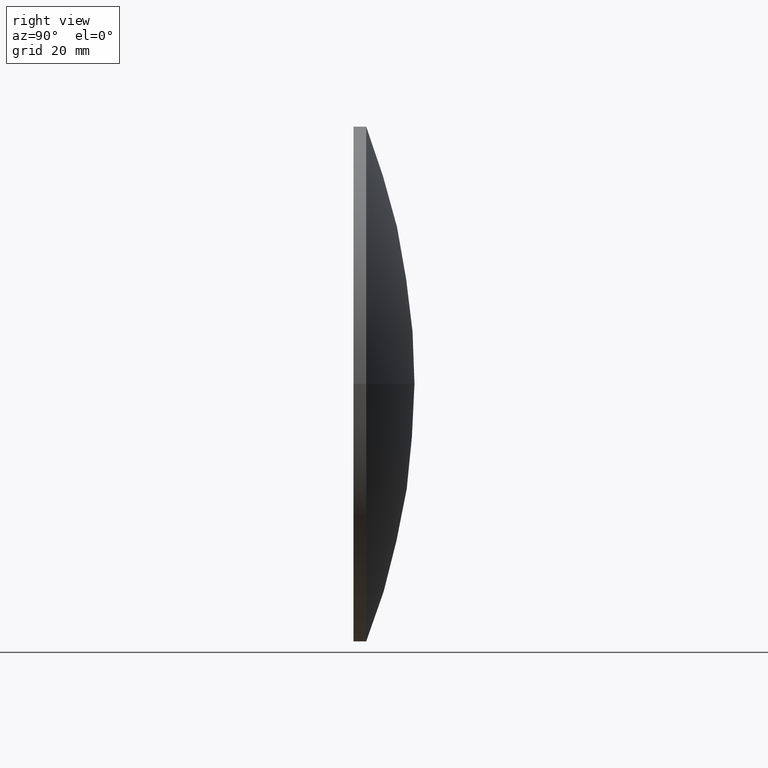
[diagram: clean part render]
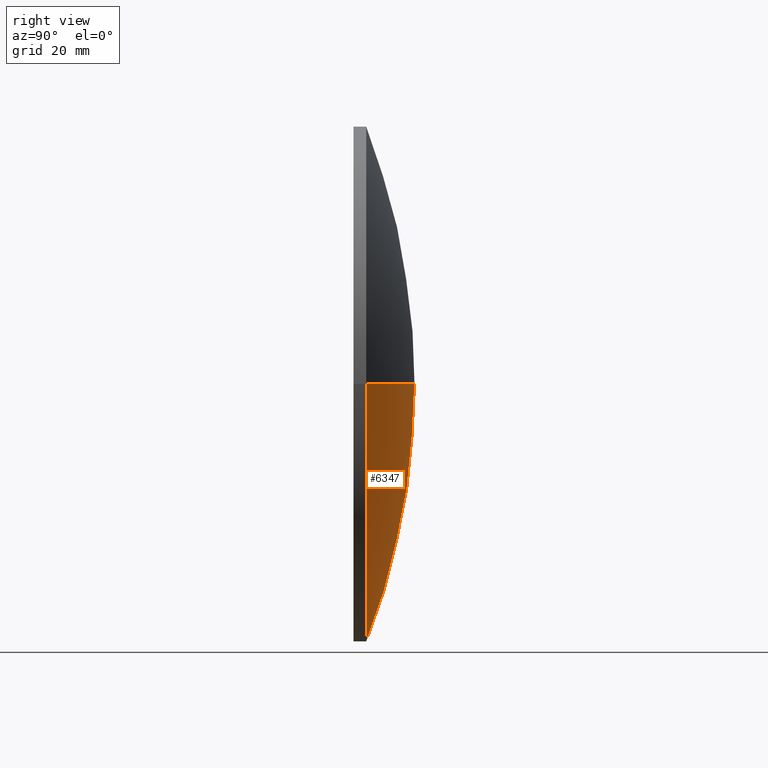
[diagram: same view with one face highlighted and labeled with its STEP entity id]
A machine part, right view. The second image highlights one B-rep face of the part: STEP entity #6347.
In plain terms, the highlighted spherical surface has radius 140.573 mm.
Its self-contained STEP definition (entity closure, byte-faithful):
#307 = ORIENTED_EDGE ( 'NONE', *, *, #5055, .T. ) ;
#2094 = AXIS2_PLACEMENT_3D ( 'NONE', #6771, #8554, #7618 ) ;
#2132 = AXIS2_PLACEMENT_3D ( 'NONE', #9547, #7700, #4890 ) ;
#2435 = FACE_OUTER_BOUND ( 'NONE', #9160, .T. ) ;
#3194 = AXIS2_PLACEMENT_3D ( 'NONE', #7684, #4179, #9416 ) ;
#3342 = CIRCLE ( 'NONE', #2094, 50.80000000000009000 ) ;
#3435 = SPHERICAL_SURFACE ( 'NONE', #2132, 140.5731578947367700 ) ;
#4129 = VERTEX_POINT ( 'NONE', #5902 ) ;
#4179 = DIRECTION ( 'NONE',  ( 1.224646799147353200E-016, -1.572626006376126000E-030, 1.000000000000000000 ) ) ;
#4249 = DIRECTION ( 'NONE',  ( 0.0000000000000000000, 0.0000000000000000000, -1.000000000000000000 ) ) ;
#4890 = DIRECTION ( 'NONE',  ( 1.000000000000000000, -1.283397514884616300E-014, 0.0000000000000000000 ) ) ;
#4960 = EDGE_CURVE ( 'NONE', #5245, #4129, #11293, .T. ) ;
#5055 = EDGE_CURVE ( 'NONE', #5245, #11613, #6518, .T. ) ;
#5185 = CARTESIAN_POINT ( 'NONE',  ( 3.210366465398499500E-014, -128.5731578947367700, 0.0000000000000000000 ) ) ;
#5245 = VERTEX_POINT ( 'NONE', #8176 ) ;
#5902 = CARTESIAN_POINT ( 'NONE',  ( -50.80000000000018200, 2.500000000001279000, 6.221205739668566400E-015 ) ) ;
#6170 = ORIENTED_EDGE ( 'NONE', *, *, #11267, .F. ) ;
#6347 = ADVANCED_FACE ( 'NONE', ( #2435 ), #3435, .T. ) ;
#6518 = CIRCLE ( 'NONE', #7235, 140.5731578947367700 ) ;
#6771 = CARTESIAN_POINT ( 'NONE',  ( -8.989026103115097500E-014, 2.500000000000626600, 0.0000000000000000000 ) ) ;
#7235 = AXIS2_PLACEMENT_3D ( 'NONE', #5185, #4249, #10505 ) ;
#7463 = ORIENTED_EDGE ( 'NONE', *, *, #4960, .F. ) ;
#7618 = DIRECTION ( 'NONE',  ( 1.000000000000000000, -1.283968557022201400E-014, 0.0000000000000000000 ) ) ;
#7684 = CARTESIAN_POINT ( 'NONE',  ( 3.210366465398499500E-014, -128.5731578947367700, 0.0000000000000000000 ) ) ;
#7700 = DIRECTION ( 'NONE',  ( -0.0000000000000000000, 0.0000000000000000000, 1.000000000000000000 ) ) ;
#8176 = CARTESIAN_POINT ( 'NONE',  ( 1.845876696208819900E-012, 11.99999999999998200, 0.0000000000000000000 ) ) ;
#8554 = DIRECTION ( 'NONE',  ( -1.284146586159413000E-014, -1.000000000000000000, -0.0000000000000000000 ) ) ;
#8997 = CARTESIAN_POINT ( 'NONE',  ( 50.79999999999999700, 2.499999999999974200, 0.0000000000000000000 ) ) ;
#9160 = EDGE_LOOP ( 'NONE', ( #7463, #307, #6170 ) ) ;
#9416 = DIRECTION ( 'NONE',  ( 1.000000000000000000, 0.0000000000000000000, -1.224646799147353000E-016 ) ) ;
#9547 = CARTESIAN_POINT ( 'NONE',  ( 3.210366465398499500E-014, -128.5731578947367700, 0.0000000000000000000 ) ) ;
#10505 = DIRECTION ( 'NONE',  ( -1.000000000000000000, 0.0000000000000000000, 0.0000000000000000000 ) ) ;
#11267 = EDGE_CURVE ( 'NONE', #4129, #11613, #3342, .T. ) ;
#11293 = CIRCLE ( 'NONE', #3194, 140.5731578947367700 ) ;
#11613 = VERTEX_POINT ( 'NONE', #8997 ) ;